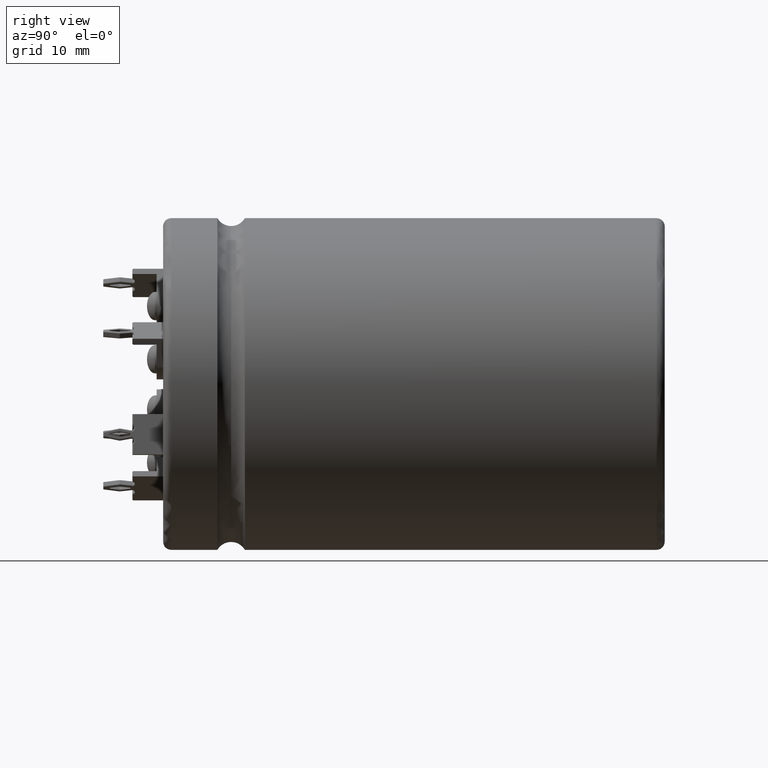
[diagram: clean part render]
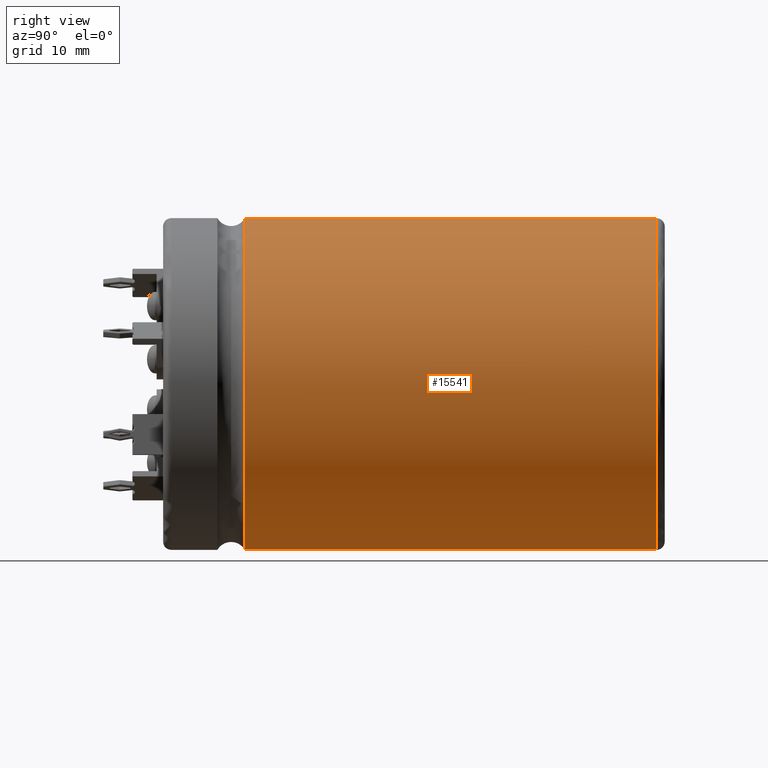
[diagram: same view with one face highlighted and labeled with its STEP entity id]
A machine part, right view. The second image highlights one B-rep face of the part: STEP entity #15541.
In plain terms, the highlighted cylindrical surface (partial cylindrical patch) has radius 20.5 mm, axis along (-0, -1, -0).
Its self-contained STEP definition (entity closure, byte-faithful):
#421 = EDGE_CURVE ( 'NONE', #16773, #5196, #7877, .T. ) ;
#507 = AXIS2_PLACEMENT_3D ( 'NONE', #15328, #7189, #13912 ) ;
#1695 = ORIENTED_EDGE ( 'NONE', *, *, #6050, .T. ) ;
#1985 = DIRECTION ( 'NONE',  ( -0.0000000000000000000, -1.000000000000000000, -0.0000000000000000000 ) ) ;
#2191 = CARTESIAN_POINT ( 'NONE',  ( 0.0000000000000000000, 10.10996688001499800, -20.50000000000000400 ) ) ;
#3067 = EDGE_LOOP ( 'NONE', ( #1695, #4747, #11418, #8695 ) ) ;
#4030 = AXIS2_PLACEMENT_3D ( 'NONE', #16202, #13439, #12246 ) ;
#4747 = ORIENTED_EDGE ( 'NONE', *, *, #421, .T. ) ;
#5196 = VERTEX_POINT ( 'NONE', #7475 ) ;
#5994 = EDGE_CURVE ( 'NONE', #9191, #5196, #9717, .T. ) ;
#6050 = EDGE_CURVE ( 'NONE', #10041, #16773, #7815, .T. ) ;
#7189 = DIRECTION ( 'NONE',  ( -0.0000000000000000000, -1.000000000000000000, -0.0000000000000000000 ) ) ;
#7475 = CARTESIAN_POINT ( 'NONE',  ( 2.510525938252074500E-015, 10.10996688001499800, 20.50000000000000400 ) ) ;
#7815 = CIRCLE ( 'NONE', #16248, 20.50000000000000000 ) ;
#7877 = LINE ( 'NONE', #8523, #8492 ) ;
#7905 = CARTESIAN_POINT ( 'NONE',  ( 2.510525938252074500E-015, 61.00000000000000000, 20.50000000000000000 ) ) ;
#8431 = LINE ( 'NONE', #13656, #12814 ) ;
#8492 = VECTOR ( 'NONE', #1985, 1000.000000000000000 ) ;
#8523 = CARTESIAN_POINT ( 'NONE',  ( 2.510525938252074500E-015, 62.00000000000000000, 20.50000000000000000 ) ) ;
#8695 = ORIENTED_EDGE ( 'NONE', *, *, #17278, .F. ) ;
#9191 = VERTEX_POINT ( 'NONE', #2191 ) ;
#9717 = CIRCLE ( 'NONE', #4030, 20.50000000000000400 ) ;
#10041 = VERTEX_POINT ( 'NONE', #16178 ) ;
#11418 = ORIENTED_EDGE ( 'NONE', *, *, #5994, .F. ) ;
#12246 = DIRECTION ( 'NONE',  ( 0.0000000000000000000, 0.0000000000000000000, -1.000000000000000000 ) ) ;
#12414 = DIRECTION ( 'NONE',  ( -0.0000000000000000000, -1.000000000000000000, -0.0000000000000000000 ) ) ;
#12814 = VECTOR ( 'NONE', #12414, 1000.000000000000000 ) ;
#13026 = FACE_OUTER_BOUND ( 'NONE', #3067, .T. ) ;
#13439 = DIRECTION ( 'NONE',  ( -0.0000000000000000000, -1.000000000000000000, -0.0000000000000000000 ) ) ;
#13656 = CARTESIAN_POINT ( 'NONE',  ( 0.0000000000000000000, 62.00000000000000000, -20.50000000000000000 ) ) ;
#13793 = DIRECTION ( 'NONE',  ( 0.0000000000000000000, 0.0000000000000000000, 1.000000000000000000 ) ) ;
#13912 = DIRECTION ( 'NONE',  ( 0.0000000000000000000, 0.0000000000000000000, -1.000000000000000000 ) ) ;
#15035 = DIRECTION ( 'NONE',  ( -0.0000000000000000000, -1.000000000000000000, -0.0000000000000000000 ) ) ;
#15210 = CARTESIAN_POINT ( 'NONE',  ( 0.0000000000000000000, 61.00000000000000000, 0.0000000000000000000 ) ) ;
#15328 = CARTESIAN_POINT ( 'NONE',  ( 0.0000000000000000000, 62.00000000000000000, 0.0000000000000000000 ) ) ;
#15541 = ADVANCED_FACE ( 'NONE', ( #13026 ), #16404, .T. ) ;
#16178 = CARTESIAN_POINT ( 'NONE',  ( 0.0000000000000000000, 61.00000000000000000, -20.50000000000000000 ) ) ;
#16202 = CARTESIAN_POINT ( 'NONE',  ( 0.0000000000000000000, 10.10996688001499800, 0.0000000000000000000 ) ) ;
#16248 = AXIS2_PLACEMENT_3D ( 'NONE', #15210, #15035, #13793 ) ;
#16404 = CYLINDRICAL_SURFACE ( 'NONE', #507, 20.50000000000000000 ) ;
#16773 = VERTEX_POINT ( 'NONE', #7905 ) ;
#17278 = EDGE_CURVE ( 'NONE', #10041, #9191, #8431, .T. ) ;